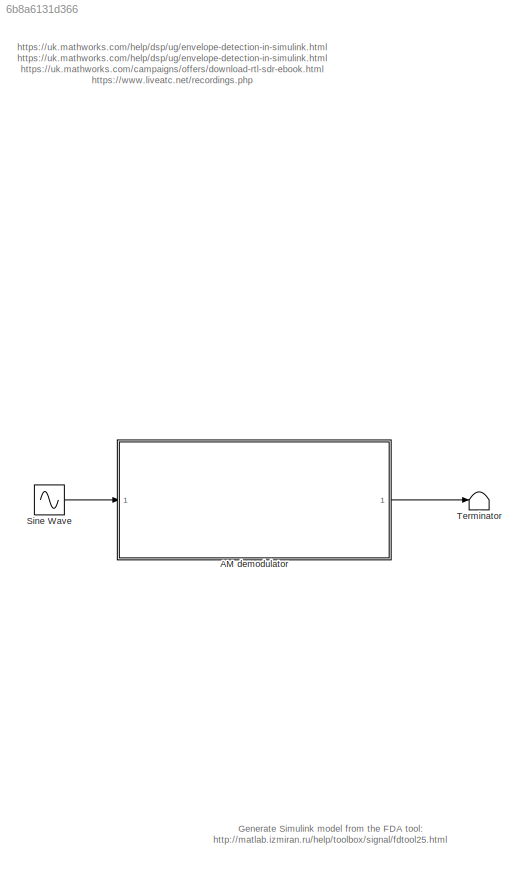
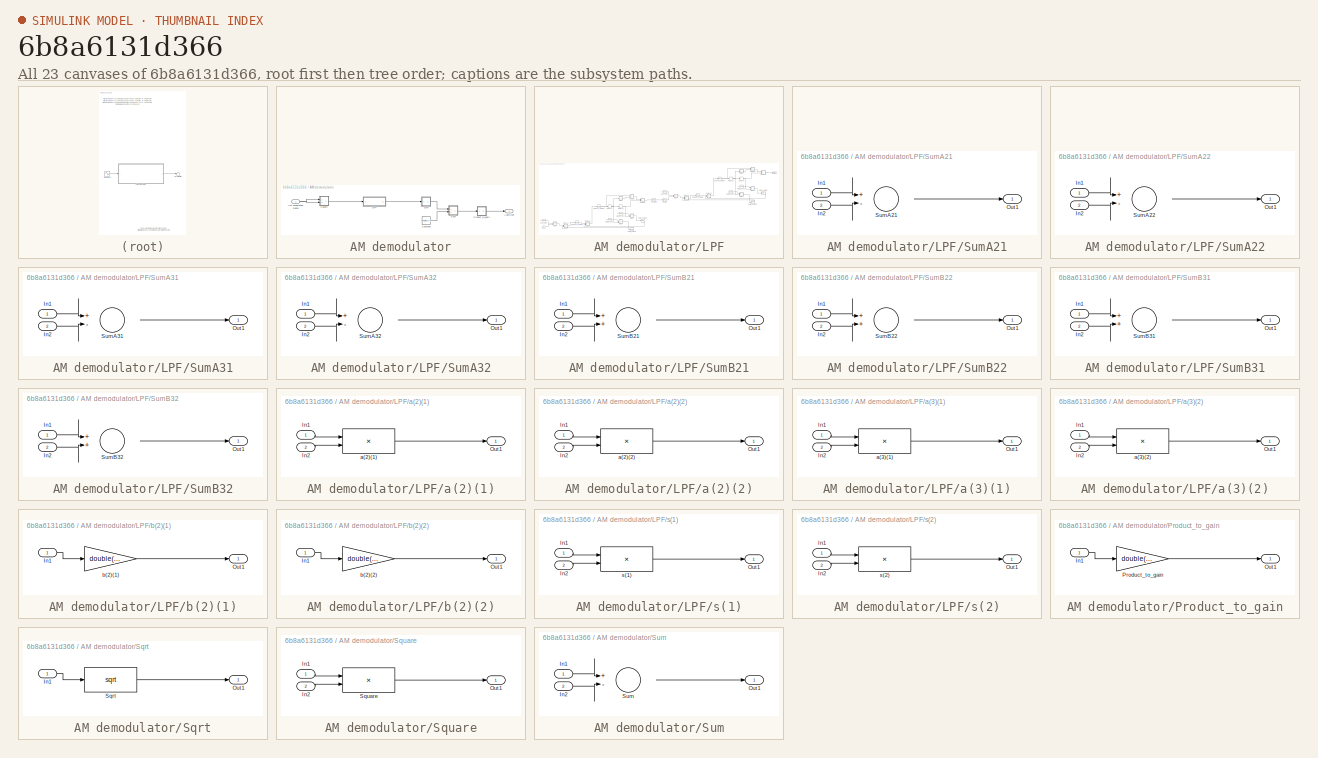
[diagram: thumbnail index - all 23 canvases of the model, root first then tree order]
MODEL slx_6b8a6131d366
KIND model
CONFIG AbsTol = auto
CONFIG EnableMultiTasking = off
CONFIG FixedStep = auto
CONFIG MaxStep = auto
CONFIG MinStep = auto
CONFIG RelTol = 1e-3
CONFIG SampleTimeConstraint = Unconstrained
CONFIG SolverName = VariableStepAuto
CONFIG StartTime = 0.0
CONFIG StopTime = 10.0
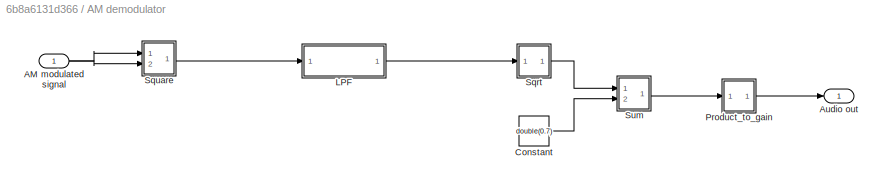
BLOCK [SubSystem] AM demodulator
  Ports = [1, 1]
  RequestExecContextInheritance = off
BLOCK [Inport] AM demodulator/AM modulated signal
  OutDataTypeStr = double
  PortDimensions = 1
  SampleTime = 1e-06
BLOCK [Outport] AM demodulator/Audio out
  SampleTime = 1e-06
BLOCK [Constant] AM demodulator/Constant
  OutDataTypeStr = double
  SampleTime = 1e-06
  Value = double(0.7)
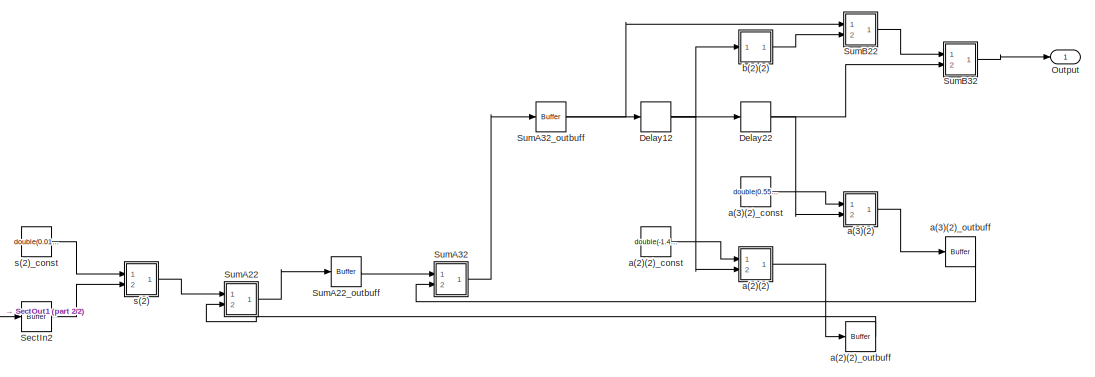
[diagram: AM demodulator/LPF - part 1/2, top right region]
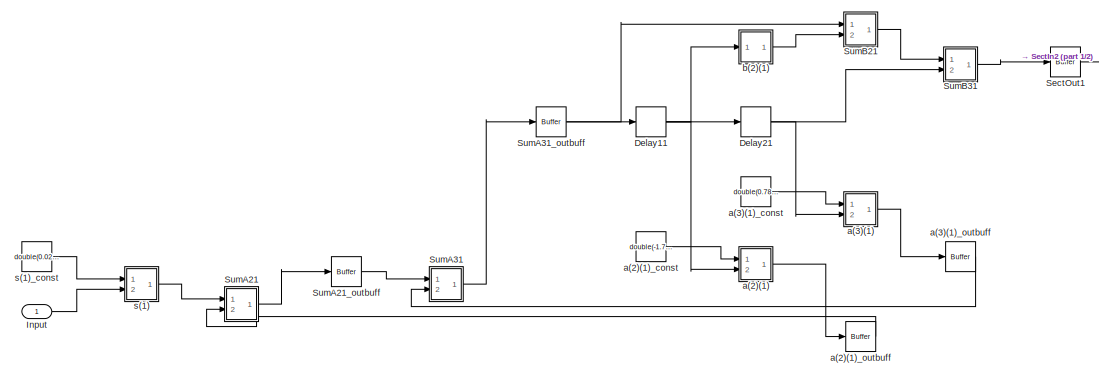
[diagram: AM demodulator/LPF - part 2/2, bottom left region]
BLOCK [SubSystem] AM demodulator/LPF
  Ports = [1, 1]
  RequestExecContextInheritance = off
BLOCK [Delay] AM demodulator/LPF/Delay11
  DelayLength = double(1)
  InitialCondition = 0
  InputPortMap = u0
  Ports = [1, 1]
  SampleTime = 1e-06
BLOCK [Delay] AM demodulator/LPF/Delay12
  DelayLength = double(1)
  InitialCondition = 0
  InputPortMap = u0
  Ports = [1, 1]
  SampleTime = 1e-06
BLOCK [Delay] AM demodulator/LPF/Delay21
  DelayLength = double(1)
  InitialCondition = 0
  InputPortMap = u0
  Ports = [1, 1]
  SampleTime = 1e-06
BLOCK [Delay] AM demodulator/LPF/Delay22
  DelayLength = double(1)
  InitialCondition = 0
  InputPortMap = u0
  Ports = [1, 1]
  SampleTime = 1e-06
BLOCK [Inport] AM demodulator/LPF/Input
  OutDataTypeStr = double
  PortDimensions = 1
  SampleTime = 1e-06
BLOCK [Outport] AM demodulator/LPF/Output
  SampleTime = 1e-06
BLOCK [Reference] AM demodulator/LPF/SectIn2  REF=hdlmdlgenlib/Buffer
  Ports = [1, 1]
  SourceBlock = hdlmdlgenlib/Buffer
  SourceProductBaseCode = SL
  SourceType = Buffer/Wire
BLOCK [Reference] AM demodulator/LPF/SectOut1  REF=hdlmdlgenlib/Buffer
  Ports = [1, 1]
  SourceBlock = hdlmdlgenlib/Buffer
  SourceProductBaseCode = SL
  SourceType = Buffer/Wire
BLOCK [SubSystem] AM demodulator/LPF/SumA21
  Ports = [2, 1]
  RequestExecContextInheritance = off
BLOCK [Inport] AM demodulator/LPF/SumA21/In1
BLOCK [Inport] AM demodulator/LPF/SumA21/In2
  Port = 2
BLOCK [Outport] AM demodulator/LPF/SumA21/Out1
BLOCK [Sum] AM demodulator/LPF/SumA21/SumA21
  Inputs = +-
  OutDataTypeStr = double
  Ports = [2, 1]
  RndMeth = Nearest
  SampleTime = 1e-06
BLOCK [Reference] AM demodulator/LPF/SumA21_outbuff  REF=hdlmdlgenlib/Buffer
  Ports = [1, 1]
  SourceBlock = hdlmdlgenlib/Buffer
  SourceProductBaseCode = SL
  SourceType = Buffer/Wire
BLOCK [SubSystem] AM demodulator/LPF/SumA22
  Ports = [2, 1]
  RequestExecContextInheritance = off
BLOCK [Inport] AM demodulator/LPF/SumA22/In1
BLOCK [Inport] AM demodulator/LPF/SumA22/In2
  Port = 2
BLOCK [Outport] AM demodulator/LPF/SumA22/Out1
BLOCK [Sum] AM demodulator/LPF/SumA22/SumA22
  Inputs = +-
  OutDataTypeStr = double
  Ports = [2, 1]
  RndMeth = Nearest
  SampleTime = 1e-06
BLOCK [Reference] AM demodulator/LPF/SumA22_outbuff  REF=hdlmdlgenlib/Buffer
  Ports = [1, 1]
  SourceBlock = hdlmdlgenlib/Buffer
  SourceProductBaseCode = SL
  SourceType = Buffer/Wire
BLOCK [SubSystem] AM demodulator/LPF/SumA31
  Ports = [2, 1]
  RequestExecContextInheritance = off
BLOCK [Inport] AM demodulator/LPF/SumA31/In1
BLOCK [Inport] AM demodulator/LPF/SumA31/In2
  Port = 2
BLOCK [Outport] AM demodulator/LPF/SumA31/Out1
BLOCK [Sum] AM demodulator/LPF/SumA31/SumA31
  Inputs = +-
  OutDataTypeStr = double
  Ports = [2, 1]
  RndMeth = Nearest
  SampleTime = 1e-06
BLOCK [Reference] AM demodulator/LPF/SumA31_outbuff  REF=hdlmdlgenlib/Buffer
  Ports = [1, 1]
  SourceBlock = hdlmdlgenlib/Buffer
  SourceProductBaseCode = SL
  SourceType = Buffer/Wire
BLOCK [SubSystem] AM demodulator/LPF/SumA32
  Ports = [2, 1]
  RequestExecContextInheritance = off
BLOCK [Inport] AM demodulator/LPF/SumA32/In1
BLOCK [Inport] AM demodulator/LPF/SumA32/In2
  Port = 2
BLOCK [Outport] AM demodulator/LPF/SumA32/Out1
BLOCK [Sum] AM demodulator/LPF/SumA32/SumA32
  Inputs = +-
  OutDataTypeStr = double
  Ports = [2, 1]
  RndMeth = Nearest
  SampleTime = 1e-06
BLOCK [Reference] AM demodulator/LPF/SumA32_outbuff  REF=hdlmdlgenlib/Buffer
  Ports = [1, 1]
  SourceBlock = hdlmdlgenlib/Buffer
  SourceProductBaseCode = SL
  SourceType = Buffer/Wire
BLOCK [SubSystem] AM demodulator/LPF/SumB21
  Ports = [2, 1]
  RequestExecContextInheritance = off
BLOCK [Inport] AM demodulator/LPF/SumB21/In1
BLOCK [Inport] AM demodulator/LPF/SumB21/In2
  Port = 2
BLOCK [Outport] AM demodulator/LPF/SumB21/Out1
BLOCK [Sum] AM demodulator/LPF/SumB21/SumB21
  OutDataTypeStr = double
  Ports = [2, 1]
  RndMeth = Nearest
  SampleTime = 1e-06
BLOCK [SubSystem] AM demodulator/LPF/SumB22
  Ports = [2, 1]
  RequestExecContextInheritance = off
BLOCK [Inport] AM demodulator/LPF/SumB22/In1
BLOCK [Inport] AM demodulator/LPF/SumB22/In2
  Port = 2
BLOCK [Outport] AM demodulator/LPF/SumB22/Out1
BLOCK [Sum] AM demodulator/LPF/SumB22/SumB22
  OutDataTypeStr = double
  Ports = [2, 1]
  RndMeth = Nearest
  SampleTime = 1e-06
BLOCK [SubSystem] AM demodulator/LPF/SumB31
  Ports = [2, 1]
  RequestExecContextInheritance = off
BLOCK [Inport] AM demodulator/LPF/SumB31/In1
BLOCK [Inport] AM demodulator/LPF/SumB31/In2
  Port = 2
BLOCK [Outport] AM demodulator/LPF/SumB31/Out1
BLOCK [Sum] AM demodulator/LPF/SumB31/SumB31
  OutDataTypeStr = double
  Ports = [2, 1]
  RndMeth = Nearest
  SampleTime = 1e-06
BLOCK [SubSystem] AM demodulator/LPF/SumB32
  Ports = [2, 1]
  RequestExecContextInheritance = off
BLOCK [Inport] AM demodulator/LPF/SumB32/In1
BLOCK [Inport] AM demodulator/LPF/SumB32/In2
  Port = 2
BLOCK [Outport] AM demodulator/LPF/SumB32/Out1
BLOCK [Sum] AM demodulator/LPF/SumB32/SumB32
  OutDataTypeStr = double
  Ports = [2, 1]
  RndMeth = Nearest
  SampleTime = 1e-06
BLOCK [SubSystem] AM demodulator/LPF/a(2)(1)
  Ports = [2, 1]
  RequestExecContextInheritance = off
BLOCK [Inport] AM demodulator/LPF/a(2)(1)/In1
BLOCK [Inport] AM demodulator/LPF/a(2)(1)/In2
  Port = 2
BLOCK [Outport] AM demodulator/LPF/a(2)(1)/Out1
BLOCK [Product] AM demodulator/LPF/a(2)(1)/a(2)(1)
  Inputs = **
  OutDataTypeStr = double
  Ports = [2, 1]
  RndMeth = Nearest
  SampleTime = 1e-06
  SaturateOnIntegerOverflow = on
BLOCK [Constant] AM demodulator/LPF/a(2)(1)_const
  OutDataTypeStr = double
  SampleTime = 1e-06
  Value = double(-1.700964331943526)
BLOCK [Reference] AM demodulator/LPF/a(2)(1)_outbuff  REF=hdlmdlgenlib/Buffer
  Ports = [1, 1]
  SourceBlock = hdlmdlgenlib/Buffer
  SourceProductBaseCode = SL
  SourceType = Buffer/Wire
BLOCK [SubSystem] AM demodulator/LPF/a(2)(2)
  Ports = [2, 1]
  RequestExecContextInheritance = off
BLOCK [Inport] AM demodulator/LPF/a(2)(2)/In1
BLOCK [Inport] AM demodulator/LPF/a(2)(2)/In2
  Port = 2
BLOCK [Outport] AM demodulator/LPF/a(2)(2)/Out1
BLOCK [Product] AM demodulator/LPF/a(2)(2)/a(2)(2)
  Inputs = **
  OutDataTypeStr = double
  Ports = [2, 1]
  RndMeth = Nearest
  SampleTime = 1e-06
  SaturateOnIntegerOverflow = on
BLOCK [Constant] AM demodulator/LPF/a(2)(2)_const
  OutDataTypeStr = double
  SampleTime = 1e-06
  Value = double(-1.4796742169311934)
BLOCK [Reference] AM demodulator/LPF/a(2)(2)_outbuff  REF=hdlmdlgenlib/Buffer
  Ports = [1, 1]
  SourceBlock = hdlmdlgenlib/Buffer
  SourceProductBaseCode = SL
  SourceType = Buffer/Wire
BLOCK [SubSystem] AM demodulator/LPF/a(3)(1)
  Ports = [2, 1]
  RequestExecContextInheritance = off
BLOCK [Inport] AM demodulator/LPF/a(3)(1)/In1
BLOCK [Inport] AM demodulator/LPF/a(3)(1)/In2
  Port = 2
BLOCK [Outport] AM demodulator/LPF/a(3)(1)/Out1
BLOCK [Product] AM demodulator/LPF/a(3)(1)/a(3)(1)
  Inputs = **
  OutDataTypeStr = double
  Ports = [2, 1]
  RndMeth = Nearest
  SampleTime = 1e-06
  SaturateOnIntegerOverflow = on
BLOCK [Constant] AM demodulator/LPF/a(3)(1)_const
  OutDataTypeStr = double
  SampleTime = 1e-06
  Value = double(0.788499739815298)
BLOCK [Reference] AM demodulator/LPF/a(3)(1)_outbuff  REF=hdlmdlgenlib/Buffer
  Ports = [1, 1]
  SourceBlock = hdlmdlgenlib/Buffer
  SourceProductBaseCode = SL
  SourceType = Buffer/Wire
BLOCK [SubSystem] AM demodulator/LPF/a(3)(2)
  Ports = [2, 1]
  RequestExecContextInheritance = off
BLOCK [Inport] AM demodulator/LPF/a(3)(2)/In1
BLOCK [Inport] AM demodulator/LPF/a(3)(2)/In2
  Port = 2
BLOCK [Outport] AM demodulator/LPF/a(3)(2)/Out1
BLOCK [Product] AM demodulator/LPF/a(3)(2)/a(3)(2)
  Inputs = **
  OutDataTypeStr = double
  Ports = [2, 1]
  RndMeth = Nearest
  SampleTime = 1e-06
  SaturateOnIntegerOverflow = on
BLOCK [Constant] AM demodulator/LPF/a(3)(2)_const
  OutDataTypeStr = double
  SampleTime = 1e-06
  Value = double(0.555821543282489)
BLOCK [Reference] AM demodulator/LPF/a(3)(2)_outbuff  REF=hdlmdlgenlib/Buffer
  Ports = [1, 1]
  SourceBlock = hdlmdlgenlib/Buffer
  SourceProductBaseCode = SL
  SourceType = Buffer/Wire
BLOCK [SubSystem] AM demodulator/LPF/b(2)(1)
  Ports = [1, 1]
  RequestExecContextInheritance = off
BLOCK [Inport] AM demodulator/LPF/b(2)(1)/In1
BLOCK [Outport] AM demodulator/LPF/b(2)(1)/Out1
BLOCK [Gain] AM demodulator/LPF/b(2)(1)/b(2)(1)
  Gain = double(2)
  RndMeth = Nearest
  SaturateOnIntegerOverflow = on
BLOCK [SubSystem] AM demodulator/LPF/b(2)(2)
  Ports = [1, 1]
  RequestExecContextInheritance = off
BLOCK [Inport] AM demodulator/LPF/b(2)(2)/In1
BLOCK [Outport] AM demodulator/LPF/b(2)(2)/Out1
BLOCK [Gain] AM demodulator/LPF/b(2)(2)/b(2)(2)
  Gain = double(2)
  RndMeth = Nearest
  SaturateOnIntegerOverflow = on
BLOCK [SubSystem] AM demodulator/LPF/s(1)
  Ports = [2, 1]
  RequestExecContextInheritance = off
BLOCK [Inport] AM demodulator/LPF/s(1)/In1
BLOCK [Inport] AM demodulator/LPF/s(1)/In2
  Port = 2
BLOCK [Outport] AM demodulator/LPF/s(1)/Out1
BLOCK [Product] AM demodulator/LPF/s(1)/s(1)
  Inputs = **
  OutDataTypeStr = double
  Ports = [2, 1]
  RndMeth = Nearest
  SampleTime = 1e-06
  SaturateOnIntegerOverflow = on
BLOCK [Constant] AM demodulator/LPF/s(1)_const
  OutDataTypeStr = double
  SampleTime = 1e-06
  Value = double(0.021883851967943024)
BLOCK [SubSystem] AM demodulator/LPF/s(2)
  Ports = [2, 1]
  RequestExecContextInheritance = off
BLOCK [Inport] AM demodulator/LPF/s(2)/In1
BLOCK [Inport] AM demodulator/LPF/s(2)/In2
  Port = 2
BLOCK [Outport] AM demodulator/LPF/s(2)/Out1
BLOCK [Product] AM demodulator/LPF/s(2)/s(2)
  Inputs = **
  OutDataTypeStr = double
  Ports = [2, 1]
  RndMeth = Nearest
  SampleTime = 1e-06
  SaturateOnIntegerOverflow = on
BLOCK [Constant] AM demodulator/LPF/s(2)_const
  OutDataTypeStr = double
  SampleTime = 1e-06
  Value = double(0.019036831587823873)
BLOCK [SubSystem] AM demodulator/Product_to_gain
  Ports = [1, 1]
  RequestExecContextInheritance = off
BLOCK [Inport] AM demodulator/Product_to_gain/In1
BLOCK [Outport] AM demodulator/Product_to_gain/Out1
BLOCK [Gain] AM demodulator/Product_to_gain/Product_to_gain
  Gain = double(2)
BLOCK [SubSystem] AM demodulator/Sqrt
  Ports = [1, 1]
  RequestExecContextInheritance = off
BLOCK [Inport] AM demodulator/Sqrt/In1
BLOCK [Outport] AM demodulator/Sqrt/Out1
BLOCK [Sqrt] AM demodulator/Sqrt/Sqrt
  SampleTime = 1e-06
BLOCK [SubSystem] AM demodulator/Square
  Ports = [2, 1]
  RequestExecContextInheritance = off
BLOCK [Inport] AM demodulator/Square/In1
BLOCK [Inport] AM demodulator/Square/In2
  Port = 2
BLOCK [Outport] AM demodulator/Square/Out1
BLOCK [Product] AM demodulator/Square/Square
  Inputs = **
  OutDataTypeStr = double
  Ports = [2, 1]
  SampleTime = 1e-06
BLOCK [SubSystem] AM demodulator/Sum
  Ports = [2, 1]
  RequestExecContextInheritance = off
BLOCK [Inport] AM demodulator/Sum/In1
BLOCK [Inport] AM demodulator/Sum/In2
  Port = 2
BLOCK [Outport] AM demodulator/Sum/Out1
BLOCK [Sum] AM demodulator/Sum/Sum
  Inputs = +-
  OutDataTypeStr = double
  Ports = [2, 1]
  SampleTime = 1e-06
BLOCK [Sin] Sine Wave
  Ports = [0, 1]
  SampleTime = 1e-6
BLOCK [Terminator] Terminator
ANNOTATION (root): Generate Simulink model from the FDA tool: http://matlab.izmiran.ru/help/toolbox/signal/fdtool25.htm l
ANNOTATION (root): https://uk.mathworks.com/help/dsp/ug/envelope-detection-in-simulink.html https://uk.mathworks.com/help/dsp/ug/envelope-detection-in-simulink.htm l https://uk.mathworks.com/campaigns/offers/download-rtl-sdr-ebook.html https://www.liveatc.net/recordings.php
NET AM demodulator/AM modulated signal:1 -> AM demodulator/Square:1, AM demodulator/Square:2
LINE AM demodulator/Constant:1 -> AM demodulator/Sum:2
NET AM demodulator/LPF/Delay11:1 -> AM demodulator/LPF/Delay21:1, AM demodulator/LPF/a(2)(1):2, AM demodulator/LPF/b(2)(1):1
NET AM demodulator/LPF/Delay12:1 -> AM demodulator/LPF/Delay22:1, AM demodulator/LPF/a(2)(2):2, AM demodulator/LPF/b(2)(2):1
NET AM demodulator/LPF/Delay21:1 -> AM demodulator/LPF/SumB31:2, AM demodulator/LPF/a(3)(1):2
NET AM demodulator/LPF/Delay22:1 -> AM demodulator/LPF/SumB32:2, AM demodulator/LPF/a(3)(2):2
LINE AM demodulator/LPF/Input:1 -> AM demodulator/LPF/s(1):2
LINE AM demodulator/LPF/SectIn2:1 -> AM demodulator/LPF/s(2):2
LINE AM demodulator/LPF/SectOut1:1 -> AM demodulator/LPF/SectIn2:1
LINE AM demodulator/LPF/SumA21/In1:1 -> AM demodulator/LPF/SumA21/SumA21:1
LINE AM demodulator/LPF/SumA21/In2:1 -> AM demodulator/LPF/SumA21/SumA21:2
LINE AM demodulator/LPF/SumA21/SumA21:1 -> AM demodulator/LPF/SumA21/Out1:1
LINE AM demodulator/LPF/SumA21:1 -> AM demodulator/LPF/SumA21_outbuff:1
LINE AM demodulator/LPF/SumA21_outbuff:1 -> AM demodulator/LPF/SumA31:1
LINE AM demodulator/LPF/SumA22/In1:1 -> AM demodulator/LPF/SumA22/SumA22:1
LINE AM demodulator/LPF/SumA22/In2:1 -> AM demodulator/LPF/SumA22/SumA22:2
LINE AM demodulator/LPF/SumA22/SumA22:1 -> AM demodulator/LPF/SumA22/Out1:1
LINE AM demodulator/LPF/SumA22:1 -> AM demodulator/LPF/SumA22_outbuff:1
LINE AM demodulator/LPF/SumA22_outbuff:1 -> AM demodulator/LPF/SumA32:1
LINE AM demodulator/LPF/SumA31/In1:1 -> AM demodulator/LPF/SumA31/SumA31:1
LINE AM demodulator/LPF/SumA31/In2:1 -> AM demodulator/LPF/SumA31/SumA31:2
LINE AM demodulator/LPF/SumA31/SumA31:1 -> AM demodulator/LPF/SumA31/Out1:1
LINE AM demodulator/LPF/SumA31:1 -> AM demodulator/LPF/SumA31_outbuff:1
NET AM demodulator/LPF/SumA31_outbuff:1 -> AM demodulator/LPF/Delay11:1, AM demodulator/LPF/SumB21:1
LINE AM demodulator/LPF/SumA32/In1:1 -> AM demodulator/LPF/SumA32/SumA32:1
LINE AM demodulator/LPF/SumA32/In2:1 -> AM demodulator/LPF/SumA32/SumA32:2
LINE AM demodulator/LPF/SumA32/SumA32:1 -> AM demodulator/LPF/SumA32/Out1:1
LINE AM demodulator/LPF/SumA32:1 -> AM demodulator/LPF/SumA32_outbuff:1
NET AM demodulator/LPF/SumA32_outbuff:1 -> AM demodulator/LPF/Delay12:1, AM demodulator/LPF/SumB22:1
LINE AM demodulator/LPF/SumB21/In1:1 -> AM demodulator/LPF/SumB21/SumB21:1
LINE AM demodulator/LPF/SumB21/In2:1 -> AM demodulator/LPF/SumB21/SumB21:2
LINE AM demodulator/LPF/SumB21/SumB21:1 -> AM demodulator/LPF/SumB21/Out1:1
LINE AM demodulator/LPF/SumB21:1 -> AM demodulator/LPF/SumB31:1
LINE AM demodulator/LPF/SumB22/In1:1 -> AM demodulator/LPF/SumB22/SumB22:1
LINE AM demodulator/LPF/SumB22/In2:1 -> AM demodulator/LPF/SumB22/SumB22:2
LINE AM demodulator/LPF/SumB22/SumB22:1 -> AM demodulator/LPF/SumB22/Out1:1
LINE AM demodulator/LPF/SumB22:1 -> AM demodulator/LPF/SumB32:1
LINE AM demodulator/LPF/SumB31/In1:1 -> AM demodulator/LPF/SumB31/SumB31:1
LINE AM demodulator/LPF/SumB31/In2:1 -> AM demodulator/LPF/SumB31/SumB31:2
LINE AM demodulator/LPF/SumB31/SumB31:1 -> AM demodulator/LPF/SumB31/Out1:1
LINE AM demodulator/LPF/SumB31:1 -> AM demodulator/LPF/SectOut1:1
LINE AM demodulator/LPF/SumB32/In1:1 -> AM demodulator/LPF/SumB32/SumB32:1
LINE AM demodulator/LPF/SumB32/In2:1 -> AM demodulator/LPF/SumB32/SumB32:2
LINE AM demodulator/LPF/SumB32/SumB32:1 -> AM demodulator/LPF/SumB32/Out1:1
LINE AM demodulator/LPF/SumB32:1 -> AM demodulator/LPF/Output:1
LINE AM demodulator/LPF/a(2)(1)/In1:1 -> AM demodulator/LPF/a(2)(1)/a(2)(1):1
LINE AM demodulator/LPF/a(2)(1)/In2:1 -> AM demodulator/LPF/a(2)(1)/a(2)(1):2
LINE AM demodulator/LPF/a(2)(1)/a(2)(1):1 -> AM demodulator/LPF/a(2)(1)/Out1:1
LINE AM demodulator/LPF/a(2)(1):1 -> AM demodulator/LPF/a(2)(1)_outbuff:1
LINE AM demodulator/LPF/a(2)(1)_const:1 -> AM demodulator/LPF/a(2)(1):1
LINE AM demodulator/LPF/a(2)(1)_outbuff:1 -> AM demodulator/LPF/SumA21:2
LINE AM demodulator/LPF/a(2)(2)/In1:1 -> AM demodulator/LPF/a(2)(2)/a(2)(2):1
LINE AM demodulator/LPF/a(2)(2)/In2:1 -> AM demodulator/LPF/a(2)(2)/a(2)(2):2
LINE AM demodulator/LPF/a(2)(2)/a(2)(2):1 -> AM demodulator/LPF/a(2)(2)/Out1:1
LINE AM demodulator/LPF/a(2)(2):1 -> AM demodulator/LPF/a(2)(2)_outbuff:1
LINE AM demodulator/LPF/a(2)(2)_const:1 -> AM demodulator/LPF/a(2)(2):1
LINE AM demodulator/LPF/a(2)(2)_outbuff:1 -> AM demodulator/LPF/SumA22:2
LINE AM demodulator/LPF/a(3)(1)/In1:1 -> AM demodulator/LPF/a(3)(1)/a(3)(1):1
LINE AM demodulator/LPF/a(3)(1)/In2:1 -> AM demodulator/LPF/a(3)(1)/a(3)(1):2
LINE AM demodulator/LPF/a(3)(1)/a(3)(1):1 -> AM demodulator/LPF/a(3)(1)/Out1:1
LINE AM demodulator/LPF/a(3)(1):1 -> AM demodulator/LPF/a(3)(1)_outbuff:1
LINE AM demodulator/LPF/a(3)(1)_const:1 -> AM demodulator/LPF/a(3)(1):1
LINE AM demodulator/LPF/a(3)(1)_outbuff:1 -> AM demodulator/LPF/SumA31:2
LINE AM demodulator/LPF/a(3)(2)/In1:1 -> AM demodulator/LPF/a(3)(2)/a(3)(2):1
LINE AM demodulator/LPF/a(3)(2)/In2:1 -> AM demodulator/LPF/a(3)(2)/a(3)(2):2
LINE AM demodulator/LPF/a(3)(2)/a(3)(2):1 -> AM demodulator/LPF/a(3)(2)/Out1:1
LINE AM demodulator/LPF/a(3)(2):1 -> AM demodulator/LPF/a(3)(2)_outbuff:1
LINE AM demodulator/LPF/a(3)(2)_const:1 -> AM demodulator/LPF/a(3)(2):1
LINE AM demodulator/LPF/a(3)(2)_outbuff:1 -> AM demodulator/LPF/SumA32:2
LINE AM demodulator/LPF/b(2)(1)/In1:1 -> AM demodulator/LPF/b(2)(1)/b(2)(1):1
LINE AM demodulator/LPF/b(2)(1)/b(2)(1):1 -> AM demodulator/LPF/b(2)(1)/Out1:1
LINE AM demodulator/LPF/b(2)(1):1 -> AM demodulator/LPF/SumB21:2
LINE AM demodulator/LPF/b(2)(2)/In1:1 -> AM demodulator/LPF/b(2)(2)/b(2)(2):1
LINE AM demodulator/LPF/b(2)(2)/b(2)(2):1 -> AM demodulator/LPF/b(2)(2)/Out1:1
LINE AM demodulator/LPF/b(2)(2):1 -> AM demodulator/LPF/SumB22:2
LINE AM demodulator/LPF/s(1)/In1:1 -> AM demodulator/LPF/s(1)/s(1):1
LINE AM demodulator/LPF/s(1)/In2:1 -> AM demodulator/LPF/s(1)/s(1):2
LINE AM demodulator/LPF/s(1)/s(1):1 -> AM demodulator/LPF/s(1)/Out1:1
LINE AM demodulator/LPF/s(1):1 -> AM demodulator/LPF/SumA21:1
LINE AM demodulator/LPF/s(1)_const:1 -> AM demodulator/LPF/s(1):1
LINE AM demodulator/LPF/s(2)/In1:1 -> AM demodulator/LPF/s(2)/s(2):1
LINE AM demodulator/LPF/s(2)/In2:1 -> AM demodulator/LPF/s(2)/s(2):2
LINE AM demodulator/LPF/s(2)/s(2):1 -> AM demodulator/LPF/s(2)/Out1:1
LINE AM demodulator/LPF/s(2):1 -> AM demodulator/LPF/SumA22:1
LINE AM demodulator/LPF/s(2)_const:1 -> AM demodulator/LPF/s(2):1
LINE AM demodulator/LPF:1 -> AM demodulator/Sqrt:1
LINE AM demodulator/Product_to_gain/In1:1 -> AM demodulator/Product_to_gain/Product_to_gain:1
LINE AM demodulator/Product_to_gain/Product_to_gain:1 -> AM demodulator/Product_to_gain/Out1:1
LINE AM demodulator/Product_to_gain:1 -> AM demodulator/Audio out:1
LINE AM demodulator/Sqrt/In1:1 -> AM demodulator/Sqrt/Sqrt:1
LINE AM demodulator/Sqrt/Sqrt:1 -> AM demodulator/Sqrt/Out1:1
LINE AM demodulator/Sqrt:1 -> AM demodulator/Sum:1
LINE AM demodulator/Square/In1:1 -> AM demodulator/Square/Square:1
LINE AM demodulator/Square/In2:1 -> AM demodulator/Square/Square:2
LINE AM demodulator/Square/Square:1 -> AM demodulator/Square/Out1:1
LINE AM demodulator/Square:1 -> AM demodulator/LPF:1
LINE AM demodulator/Sum/In1:1 -> AM demodulator/Sum/Sum:1
LINE AM demodulator/Sum/In2:1 -> AM demodulator/Sum/Sum:2
LINE AM demodulator/Sum/Sum:1 -> AM demodulator/Sum/Out1:1
LINE AM demodulator/Sum:1 -> AM demodulator/Product_to_gain:1
LINE AM demodulator:1 -> Terminator:1
LINE Sine Wave:1 -> AM demodulator:1
note: NET lines group one-source signal fan-out (src -> all destinations, sorted); 1:1 wires keep LINE
